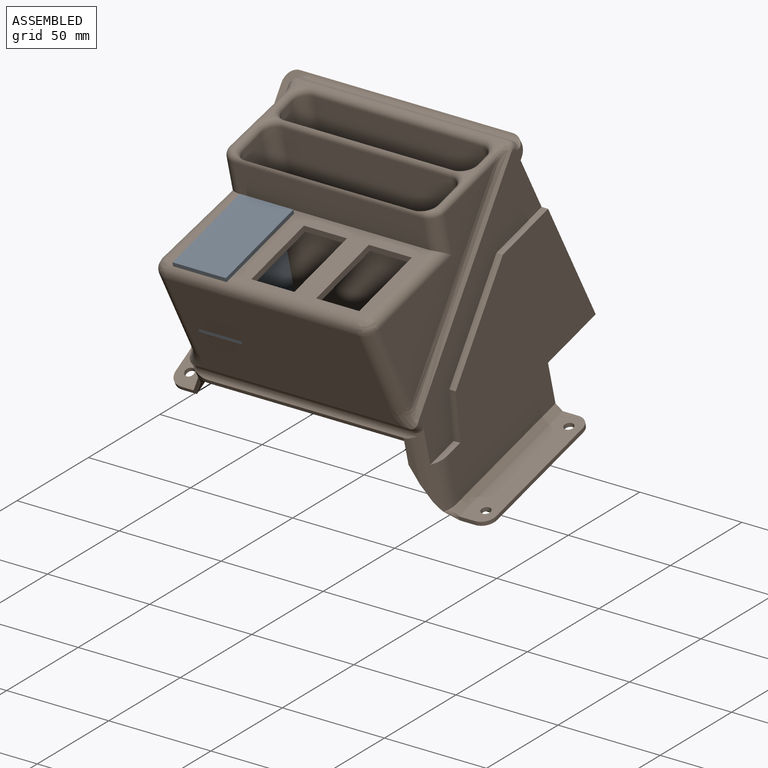
[diagram: assembled view]
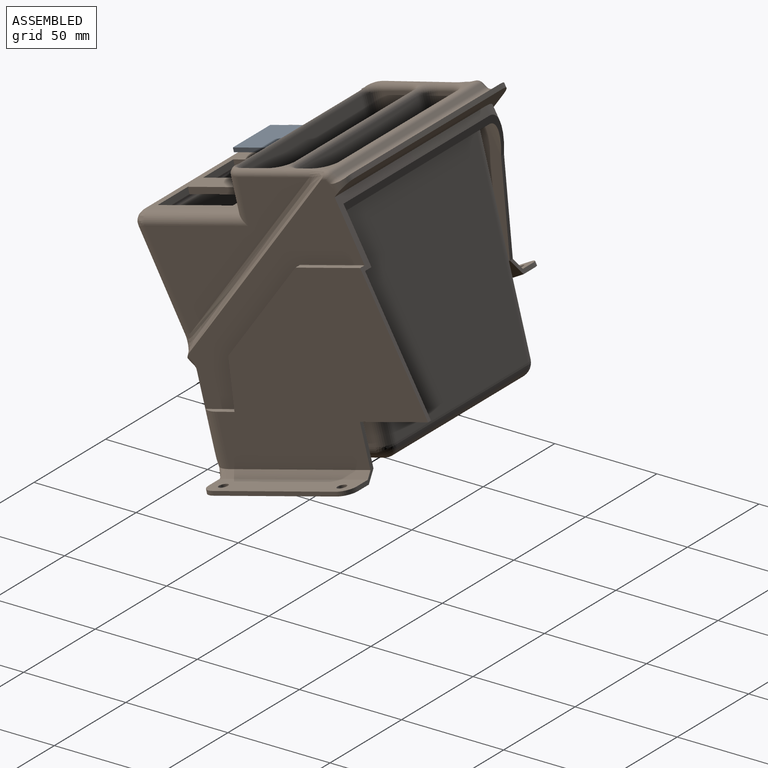
[diagram: assembled view, second angle]
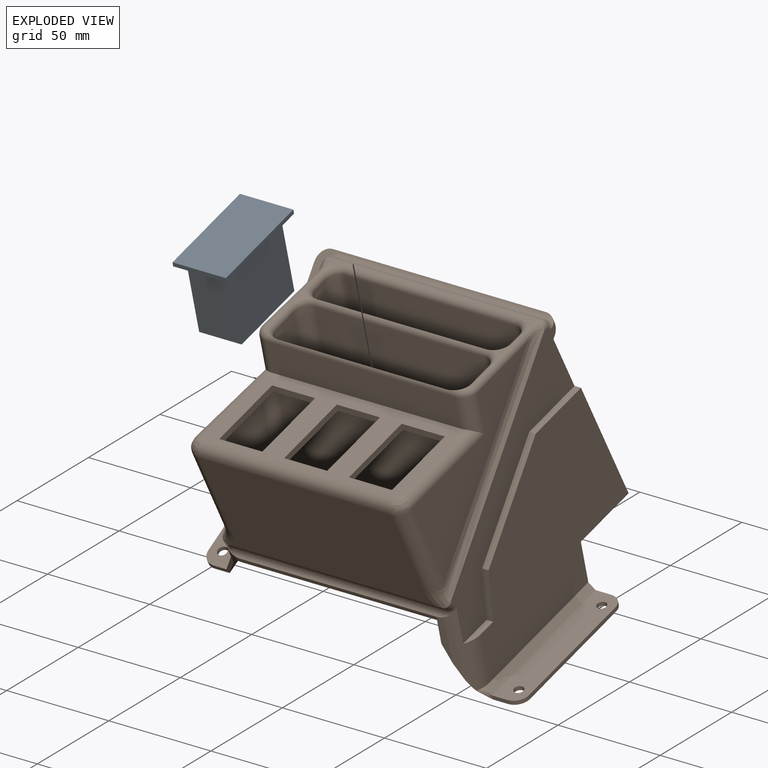
[diagram: exploded view]
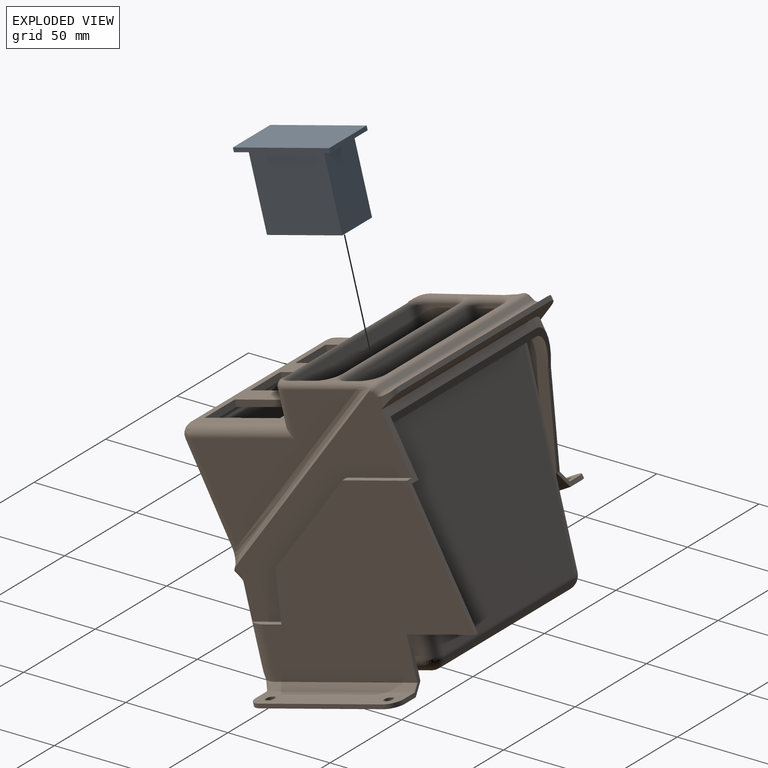
[diagram: exploded view, second angle]
ASSEMBLY  parts=2 mates=3
PART A: 11 faces, bbox 26.2x38.4x48.8 mm
  f0: plane 26.16x2.03mm, normal (0,0,1), area 53.2mm2, adj f1,f3,f4,f5
  f1: plane 48.77x2.03mm, normal (-1,0,0), area 99.1mm2, adj f0,f2,f4,f5
  f2: plane 26.16x2.03mm, normal (0,0,-1), area 53.2mm2, adj f1,f3,f4,f5
  f3: plane 48.77x2.03mm, normal (1,0,0), area 99.1mm2, adj f0,f2,f4,f5
  f4: plane 48.77x26.16mm, normal (0,-1,0), area 1275.9mm2, adj f0,f1,f2,f3
  f5: plane 48.77x26.16mm, normal (0,1,0), area 482.3mm2, adj f0,f1,f2,f3,f6,f7,f8,f9
  f6: plane 38.1x36.32mm, normal (-1,0,0), area 1383.9mm2, adj f5,f7,f9,f10
  f7: plane 36.32x20.83mm, normal (0,0,1), area 756.5mm2, adj f5,f6,f8,f10
  f8: plane 38.1x36.32mm, normal (1,0,0), area 1383.9mm2, adj f5,f7,f9,f10
  f9: plane 36.32x20.83mm, normal (0,0,-1), area 756.5mm2, adj f5,f6,f8,f10
  f10: plane 38.1x20.83mm, normal (0,1,0), area 793.5mm2, adj f6,f7,f8,f9
PART B: 202 faces, bbox 155.3x2770.8x1367.6 mm
  f0: plane 105.77x3.32mm, normal (0,0.44,-0.9), area 347.4mm2, adj f12,f14,f15,f16,f31,f63,f196
  f1: plane 6.26x3.11mm, normal (0,0.25,0.97), area 8.2mm2, adj f180,f181,f188
  f2: plane 102.95x5.12mm, normal (0,0.25,0.97), area 78.1mm2, adj f162,f164,f172,f173,f179,f185,f186,f189
  f3: plane 101.61x0.47mm, normal (0,-0.44,0.9), area 38mm2, adj f12,f13,f31,f148
  f4: plane 110.01x103.6mm, normal (0,0.44,-0.9), area 538mm2, adj f8,f46,f76,f77,f80,f81,f82,f106
  f5: plane 92.11x54.53mm, normal (1,0,0), area 2005.6mm2, adj f144,f156,f160,f166,f201
  f6: plane 92.77x15.36mm, normal (0,-0.97,0.25), area 1472.8mm2, adj f103,f144,f145,f177
  f7: plane 91.89x54.45mm, normal (-1,0.03,-0.01), area 1994.1mm2, adj f145,f157,f158,f188,f197
  f8: plane 106.92x7.98mm, normal (0,-0.9,-0.44), area 300.8mm2, adj f4,f46,f77,f78,f83,f123,f132
  f9: plane 103.51x30.29mm, normal (0,-1,0), area 660.7mm2, adj f20,f21,f22,f46,f49,f78
  f10: plane 102.94x1.96mm, normal (0,0.9,0.44), area 224.4mm2, adj f136,f137,f154,f172
  f11: plane 108.71x98.16mm, normal (0,1,0), area 671.5mm2, adj f20,f21,f22,f23,f37,f38,f39,f43
  f12: plane 96.01x2.26mm, normal (0,-1,0), area 217.4mm2, adj f0,f3,f14,f31
  f13: cylinder r=11.43mm len=42.79mm, axis (0,0.25,0.97), area 452.9mm2, adj f3,f14,f23,f40,f44,f60,f61,f62
  f14: plane 13.74x5.18mm, normal (-1,0,0), area 24.9mm2, adj f0,f12,f13,f16,f60
  f15: cylinder r=9.4mm len=40.36mm, axis (0,0.25,0.97), area 259.4mm2, adj f0,f16,f17,f46,f48,f60,f195
  f16: bspline ~16.43x4.52mm, area 31.3mm2, adj f0,f14,f15,f60
  f17: plane 17.08x4.48mm, normal (0,-0.25,-0.97), area 49.1mm2, adj f15,f46,f48,f50
  f18: plane 0.22x0.13mm, normal (0,0,-1), area 0mm2, adj f30,f52,f63
  f19: plane 41.6x18.38mm, normal (0,0.91,-0.4), area 92.4mm2, adj f22,f24,f25,f29
  f20: plane 28.02x2.03mm, normal (-1,0,0), area 53.1mm2, adj f9,f11,f21,f22
  f21: plane 31.42x8.21mm, normal (0,-0.25,-0.97), area 105.8mm2, adj f9,f11,f20,f46,f48,f51
  f22: plane 113.64x18.42mm, normal (0,0.85,-0.53), area 456.9mm2, adj f9,f11,f19,f20,f38,f49
  f23: plane 107.77x87.58mm, normal (1,0,0), area 6340.6mm2, adj f11,f13,f39,f40,f41,f42,f43,f55
  f24: plane 97.75x67.05mm, normal (-1,0,0), area 3038mm2, adj f19,f28,f31,f35,f37,f38,f73
  f25: plane 11.43x7.62mm, normal (0,1,0), area 27.2mm2, adj f19,f26,f32,f34,f35,f70
  f26: plane 79.03x18.48mm, normal (0.88,0,-0.48), area 689.5mm2, adj f25,f29,f30,f31,f32,f36,f45,f52
  f27: plane 104.27x2.26mm, normal (0,1,0), area 236.1mm2, adj f28,f37,f72,f73
  f28: plane 113.99x112.43mm, normal (0,-0.44,0.9), area 451.1mm2, adj f24,f27,f31,f72,f73,f151,f152,f153
  f29: plane 85.05x58.54mm, normal (1,0,0), area 2816.6mm2, adj f19,f26,f45,f47,f49
  f30: cylinder r=11.43mm len=0.4mm, axis (0,0,1), area 0.1mm2, adj f18,f26,f52
  f31: cylinder r=12.7mm len=18.95mm, axis (0,0,-1), area 193.7mm2, adj f0,f3,f12,f24,f26,f28,f35,f36
  f32: plane 74.93x13.56mm, normal (0,0,-1), area 966.9mm2, adj f25,f26,f33,f36,f66,f67,f70,f71
  f33: plane 62.23x2.03mm, normal (-1,0,0), area 126.5mm2, adj f32,f34,f70,f71
  f34: plane 74.93x12.66mm, normal (0,0,1), area 898.9mm2, adj f25,f33,f35,f36,f66,f67,f70,f71
  f35: plane 74.93x11.1mm, normal (-0.88,0,0.48), area 494.9mm2, adj f24,f25,f31,f34,f36
  f36: plane 13.13x12.45mm, normal (0,-1,0), area 34.6mm2, adj f26,f31,f32,f34,f35,f71
  f37: plane 119.33x21.42mm, normal (0,0.44,-0.9), area 1005.3mm2, adj f11,f24,f27,f38,f44,f72,f73
  f38: cylinder r=11.43mm len=22.56mm, axis (0,0,-1), area 144.1mm2, adj f11,f22,f24,f37
  f39: plane 33.37x8.72mm, normal (0,-0.25,-0.97), area 70.1mm2, adj f11,f23,f48,f55
  f40: plane 16.4x4.28mm, normal (0,0.25,0.97), area 46mm2, adj f13,f23,f41,f44
  f41: plane 22.4x9.04mm, normal (0,-0.93,0.37), area 76.7mm2, adj f23,f40,f42,f44
  f42: plane 52.14x25.66mm, normal (0,-0.44,0.9), area 184.5mm2, adj f23,f41,f43,f44
  f43: plane 31.64x8.26mm, normal (0,0.25,0.97), area 103.8mm2, adj f11,f23,f42,f44
  f44: plane 111.2x78.97mm, normal (1,0,0), area 2347.6mm2, adj f11,f13,f37,f40,f41,f42,f43,f72
  f45: cylinder r=10.67mm len=16.68mm, axis (0,0,-1), area 123mm2, adj f26,f29,f47,f52
  f46: plane 108.19x79.86mm, normal (-1,0,0), area 2304.9mm2, adj f4,f8,f9,f15,f17,f21,f50,f51
  f47: plane 104.08x51.56mm, normal (0,0.44,-0.9), area 701mm2, adj f29,f45,f49,f52,f77
  f48: plane 107.77x85.42mm, normal (-1,0,0), area 6067.3mm2, adj f11,f15,f17,f21,f39,f50,f51,f55
  f49: cylinder r=9.4mm len=21.47mm, axis (0,0,-1), area 150.5mm2, adj f9,f22,f29,f47,f77,f78
  f50: plane 25.11x10.13mm, normal (0,0.93,-0.37), area 86mm2, adj f17,f46,f48,f51
  f51: plane 50.77x24.98mm, normal (0,0.44,-0.9), area 179.6mm2, adj f21,f46,f48,f50
  f52: plane 2.95x0.47mm, normal (0,1,0), area 1.1mm2, adj f18,f26,f30,f45,f47,f63,f77,f196
  f53: plane 7.62x1.97mm, normal (0,-0.97,0.25), area 15.5mm2, adj f54,f56,f62,f69
  f54: plane 72.5x18.94mm, normal (0,-0.25,-0.97), area 997.4mm2, adj f53,f55,f57,f58,f64,f65,f68,f69
  f55: plane 24.85x12.7mm, normal (0,0.97,-0.25), area 65.6mm2, adj f23,f39,f48,f54,f56,f58,f59,f68
  f56: plane 72.5x18.94mm, normal (0,0.25,0.97), area 997.4mm2, adj f53,f55,f57,f59,f61,f64,f65,f68
  f57: plane 60.72x17.69mm, normal (1,0,0), area 126.5mm2, adj f54,f56,f68,f69
  f58: plane 75.49x24.63mm, normal (-0.71,-0.18,-0.68), area 549.4mm2, adj f48,f54,f55,f60,f62
  f59: plane 69.97x21.02mm, normal (0.71,0.18,0.68), area 308.3mm2, adj f23,f55,f56,f61
  f60: plane 26.67x9.45mm, normal (-0.93,-0.09,-0.35), area 67.8mm2, adj f13,f14,f15,f16,f58
  f61: bspline ~4.07x3.81mm, area 15.2mm2, adj f13,f56,f59,f62
  f62: bspline ~5.7x5.08mm, area 12.6mm2, adj f13,f53,f58,f61
  f63: plane 2.52x2.09mm, normal (1,0,0), area 3.6mm2, adj f0,f18,f26,f31,f52,f196
  f64: cylinder r=2.26mm len=4.89mm, axis (0,0.25,0.97), area 28.9mm2, adj f54,f56
  f65: cylinder r=2.26mm len=4.89mm, axis (0,0.25,0.97), area 28.9mm2, adj f54,f56
  f66: cylinder r=2.26mm len=4.52mm, axis (0,0,1), area 28.9mm2, adj f32,f34
  f67: cylinder r=2.26mm len=4.52mm, axis (0,0,1), area 28.9mm2, adj f32,f34
  f68: cylinder r=6.35mm len=6.66mm, axis (0,0.25,0.97), area 20.3mm2, adj f54,f55,f56,f57
  f69: cylinder r=6.35mm len=6.66mm, axis (0,-0.25,-0.97), area 20.3mm2, adj f53,f54,f56,f57
  f70: cylinder r=6.35mm len=6.35mm, axis (0,0,-1), area 20.3mm2, adj f25,f32,f33,f34
  f71: cylinder r=6.35mm len=6.35mm, axis (0,0,-1), area 20.3mm2, adj f32,f33,f34,f36
  f72: cylinder r=6.35mm len=7.02mm, axis (0,0,-1), area 29.9mm2, adj f27,f28,f37,f44,f137,f154,f155
  f73: cylinder r=6.35mm len=6.35mm, axis (0,0,1), area 22.6mm2, adj f24,f27,f28,f37
  f74: plane 105.72x3.79mm, normal (0,-0.9,-0.44), area 381.4mm2, adj f104,f138,f139,f147,f148,f149,f159,f161
  f75: plane 106.6x54.39mm, normal (-1,0.02,0.01), area 422.7mm2, adj f136,f139,f152,f157,f159,f185
  f76: plane 107.66x3.45mm, normal (0,0.9,0.44), area 391.1mm2, adj f4,f46,f77,f195,f196
  f77: plane 104.4x57.1mm, normal (1,-0.02,-0.01), area 770.5mm2, adj f4,f8,f47,f49,f52,f76,f78,f196
  f78: plane 105.38x0.36mm, normal (0,-0.44,0.9), area 15.9mm2, adj f8,f9,f46,f49,f77
  f79: plane 92.79x38.4mm, normal (0,-0.25,-0.97), area 3659.9mm2, adj f124,f125,f129,f130
  f80: plane 105.31x65.9mm, normal (-1,0.03,-0.01), area 3640.3mm2, adj f4,f121,f123,f124
  f81: plane 92.77x88.25mm, normal (0,-0.97,0.25), area 8380.3mm2, adj f4,f121,f125,f126,f135,f140,f142
  f82: plane 105.15x65.87mm, normal (1,0,0), area 3632.6mm2, adj f4,f126,f130,f132
  f83: plane 104.69x91.66mm, normal (0,0.97,-0.25), area 9918.3mm2, adj f8,f123,f129,f132
  f84: plane 4.45x2.41mm, normal (0,0.25,0.97), area 4.9mm2, adj f166,f168,f169
  f85: plane 95.25x24.58mm, normal (0,0.25,0.97), area 2384.7mm2, adj f86,f87,f88,f89,f90,f91,f92,f93
  f86: cylinder r=6.35mm len=116.28mm, axis (0,-0.25,-0.97), area 1182.2mm2, adj f85,f87,f93,f169
  f87: plane 114.67x82.55mm, normal (0,-0.97,0.25), area 9783.8mm2, adj f85,f86,f88,f175
  f88: cylinder r=6.35mm len=116.28mm, axis (0,-0.25,-0.97), area 1182.2mm2, adj f85,f87,f89,f181
  f89: plane 117.88x42.24mm, normal (1,0,0), area 1505.2mm2, adj f85,f88,f90,f182
  f90: cylinder r=6.35mm len=116.28mm, axis (0,-0.25,-0.97), area 1182.2mm2, adj f85,f89,f91,f183
  f91: plane 114.67x82.55mm, normal (0,0.97,-0.25), area 9783.8mm2, adj f85,f90,f92,f176
  f92: cylinder r=6.35mm len=116.28mm, axis (0,-0.25,-0.97), area 1182.2mm2, adj f85,f91,f93,f170
  f93: plane 117.88x42.24mm, normal (-1,0,0), area 1505.2mm2, adj f85,f86,f92,f165
  f94: plane 95.25x18.43mm, normal (0,0.25,0.97), area 1779.9mm2, adj f95,f96,f97,f98,f99,f100,f101,f102
  f95: cylinder r=6.35mm len=116.28mm, axis (0,-0.25,-0.97), area 1182.2mm2, adj f94,f96,f102,f168
  f96: plane 116.28x36.1mm, normal (-1,0,0), area 752.6mm2, adj f94,f95,f97,f167
  f97: cylinder r=6.35mm len=116.28mm, axis (0,-0.25,-0.97), area 1182.2mm2, adj f94,f96,f98,f173
  f98: plane 114.67x82.55mm, normal (0,-0.97,0.25), area 9783.8mm2, adj f94,f97,f99,f179
  f99: cylinder r=6.35mm len=116.28mm, axis (0,-0.25,-0.97), area 1182.2mm2, adj f94,f98,f100,f186
  f100: plane 116.28x36.1mm, normal (1,0,0), area 752.6mm2, adj f94,f99,f101,f187
  f101: cylinder r=6.35mm len=116.28mm, axis (0,-0.25,-0.97), area 1182.2mm2, adj f94,f100,f102,f180
  f102: plane 114.67x82.55mm, normal (0,0.97,-0.25), area 9783.8mm2, adj f94,f95,f101,f174
  f103: plane 96.8x46.11mm, normal (0,0.25,0.97), area 2155.7mm2, adj f6,f109,f110,f111,f112,f113,f114,f115
  f104: plane 99.53x56.78mm, normal (0,-1,0.01), area 5356.7mm2, adj f74,f158,f159,f160,f161,f199
  f105: plane 89.1x39.46mm, normal (0,-0.25,-0.97), area 1224.4mm2, adj f109,f110,f111,f112,f113,f114,f115,f116
  f106: plane 92.91x55.82mm, normal (0,1,-0.01), area 5185.5mm2, adj f4,f190,f191,f192,f193,f194
  f107: plane 52.25x39.7mm, normal (1,0,0), area 1393.5mm2, adj f4,f134,f142,f194
  f108: plane 52.25x39.7mm, normal (-1,0,0), area 1393.5mm2, adj f4,f133,f140,f190
  f109: plane 37.67x12.7mm, normal (1,0,0), area 121mm2, adj f103,f105,f110,f111
  f110: plane 21.08x3.07mm, normal (0,0.97,-0.25), area 66.9mm2, adj f103,f105,f109,f112
  f111: plane 21.08x3.07mm, normal (0,-0.97,0.25), area 66.9mm2, adj f103,f105,f109,f112
  f112: plane 37.67x12.7mm, normal (-1,0,0), area 121mm2, adj f103,f105,f110,f111
  f113: plane 37.67x12.7mm, normal (1,0,0), area 121mm2, adj f103,f105,f114,f115
  f114: plane 21.08x3.07mm, normal (0,0.97,-0.25), area 66.9mm2, adj f103,f105,f113,f116
  f115: plane 21.08x3.07mm, normal (0,-0.97,0.25), area 66.9mm2, adj f103,f105,f113,f116
  f116: plane 37.67x12.7mm, normal (-1,0,0), area 121mm2, adj f103,f105,f114,f115
  f117: plane 37.67x12.7mm, normal (1,0,0), area 121mm2, adj f103,f105,f118,f119
  f118: plane 21.08x3.07mm, normal (0,0.97,-0.25), area 66.9mm2, adj f103,f105,f117,f120
  f119: plane 21.08x3.07mm, normal (0,-0.97,0.25), area 66.9mm2, adj f103,f105,f117,f120
  f120: plane 37.67x12.7mm, normal (-1,0,0), area 121mm2, adj f103,f105,f118,f119
  f121: cylinder r=6.35mm len=73.77mm, axis (0,-0.25,-0.97), area 728.2mm2, adj f4,f80,f81,f122
  f122: sphere r=6.35mm, area 44.8mm2, adj f121,f124,f125
  f123: cylinder r=6.35mm len=109.56mm, axis (0,-0.25,-0.97), area 1077.7mm2, adj f4,f8,f80,f83,f127
  f124: cylinder r=6.35mm len=40.18mm, axis (0.03,0.97,-0.25), area 396mm2, adj f79,f80,f122,f127
  f125: cylinder r=6.35mm len=92.77mm, axis (-1,0,0), area 925.4mm2, adj f79,f81,f122,f128
  f126: cylinder r=6.35mm len=73.57mm, axis (0,-0.25,-0.97), area 714.3mm2, adj f4,f81,f82,f128
  f127: sphere r=6.35mm, area 64.4mm2, adj f123,f124,f129
  f128: sphere r=6.35mm, area 44mm2, adj f125,f126,f130
  f129: cylinder r=6.35mm len=91.66mm, axis (1,0,0), area 914.3mm2, adj f79,f83,f127,f131
  f130: cylinder r=6.35mm len=40mm, axis (0,-0.97,0.25), area 395.9mm2, adj f79,f82,f128,f131
  f131: sphere r=6.35mm, area 62.7mm2, adj f129,f130,f132
  f132: cylinder r=6.35mm len=109.6mm, axis (0,-0.25,-0.97), area 1097.4mm2, adj f4,f8,f82,f83,f131
  f133: cylinder r=5.08mm len=40.75mm, axis (0,0.97,-0.25), area 323.6mm2, adj f105,f108,f141,f191
  f134: cylinder r=5.08mm len=40.75mm, axis (0,-0.97,0.25), area 323.6mm2, adj f105,f107,f143,f193
  f135: cylinder r=5.08mm len=89.1mm, axis (1,0,0), area 711mm2, adj f81,f105,f141,f143
  f136: cylinder r=3.17mm len=3.75mm, axis (0,0.44,-0.9), area 10.7mm2, adj f10,f75,f153,f178
  f137: cylinder r=3.17mm len=5.58mm, axis (0,-0.44,0.9), area 11.5mm2, adj f10,f44,f72,f155,f163
  f138: cylinder r=3.17mm len=4.99mm, axis (0,0.44,-0.9), area 17.9mm2, adj f44,f74,f146,f161
  f139: cylinder r=3.17mm len=4.75mm, axis (0,-0.44,0.9), area 16.1mm2, adj f74,f75,f150,f151,f159
  f140: cylinder r=5.08mm len=27.13mm, axis (0,0.25,0.97), area 195.6mm2, adj f4,f81,f108,f141
  f141: sphere r=5.08mm, area 28.2mm2, adj f133,f135,f140
  f142: cylinder r=5.08mm len=27.13mm, axis (0,0.25,0.97), area 195.6mm2, adj f4,f81,f107,f143
  f143: sphere r=5.08mm, area 28.2mm2, adj f134,f135,f142
  f144: cylinder r=6.35mm len=21.88mm, axis (0,-0.25,-0.97), area 174.7mm2, adj f5,f6,f103,f171,f201
  f145: cylinder r=6.35mm len=21.93mm, axis (0,-0.25,-0.97), area 177.5mm2, adj f6,f7,f103,f184,f197
  f146: bspline ~5.54x5.28mm, area 13.2mm2, adj f13,f44,f138,f147
  f147: bspline ~4.36x4.27mm, area 10.2mm2, adj f13,f74,f146,f148
  f148: cylinder r=3.17mm len=101.49mm, axis (-1,0,0), area 506.2mm2, adj f3,f74,f147,f149
  f149: bspline ~4.25x1.76mm, area 5.9mm2, adj f31,f74,f148,f150
  f150: bspline ~7.86x6mm, area 25.1mm2, adj f31,f139,f149,f151
  f151: torus R=6.35mm, axis (0,-0.44,0.9), area 1.8mm2, adj f28,f139,f150,f152
  f152: cylinder r=3.17mm len=106.18mm, axis (-0.02,-0.9,-0.44), area 582.2mm2, adj f28,f75,f151,f153
  f153: torus R=6.35mm, axis (0,-0.44,0.9), area 33.5mm2, adj f28,f136,f152,f154
  f154: cylinder r=3.17mm len=102.94mm, axis (-1,0,0), area 513.1mm2, adj f10,f28,f72,f153,f155
  f155: torus R=6.35mm, axis (0,-0.44,0.9), area 12.5mm2, adj f72,f137,f154
  f156: bspline ~2768.47x1365.24mm, area 650mm2, adj f5,f44,f161,f162,f164
  f157: bspline ~1031.75x511.51mm, area 637.8mm2, adj f7,f75,f159,f185,f189
  f158: cylinder r=6.35mm len=47.87mm, axis (0.01,-0.01,-1), area 483mm2, adj f7,f104,f159,f198
  f159: bspline ~13.13x9.67mm, area 84.9mm2, adj f74,f75,f104,f139,f157,f158
  f160: cylinder r=6.35mm len=47.91mm, axis (0,0.01,1), area 475.4mm2, adj f5,f104,f161,f200
  f161: bspline ~14.5x9.85mm, area 83.4mm2, adj f44,f74,f104,f138,f156,f160
  f162: cylinder r=3.17mm len=3.63mm, axis (0,0.97,-0.25), area 4.1mm2, adj f2,f44,f156,f163,f164
  f163: sphere r=3.17mm, area 10.4mm2, adj f137,f162,f172
  f164: bspline ~13.76x5.46mm, area 37.9mm2, adj f2,f156,f162,f166,f173
  f165: cylinder r=3.17mm len=13.06mm, axis (0,0.97,-0.25), area 51.4mm2, adj f93,f166,f169,f170
  f166: cylinder r=3.17mm len=36.14mm, axis (0,-0.97,0.25), area 155.8mm2, adj f5,f84,f164,f165,f167,f168,f169,f170
  f167: cylinder r=3.17mm len=6.91mm, axis (0,0.97,-0.25), area 25.7mm2, adj f96,f166,f168,f173
  f168: torus R=9.53mm, axis (0,0.25,0.97), area 51.7mm2, adj f84,f95,f166,f167,f169,f174
  f169: torus R=9.53mm, axis (0,0.25,0.97), area 51.7mm2, adj f84,f86,f165,f166,f168,f175
  f170: torus R=9.53mm, axis (0,0.25,0.97), area 38.4mm2, adj f92,f165,f166,f171,f176,f177
  f171: torus R=3.17mm, axis (0,0.25,0.97), area 34.6mm2, adj f144,f166,f170,f177
  f172: cylinder r=3.17mm len=102.94mm, axis (-1,0,0), area 280.4mm2, adj f2,f10,f163,f178
  f173: torus R=9.53mm, axis (0,0.25,0.97), area 55.7mm2, adj f2,f97,f164,f166,f167,f179
  f174: cylinder r=3.17mm len=82.55mm, axis (1,0,0), area 274.5mm2, adj f102,f168,f175,f180
  f175: cylinder r=3.17mm len=82.55mm, axis (-1,0,0), area 274.5mm2, adj f87,f169,f174,f181
  f176: cylinder r=3.17mm len=82.55mm, axis (1,0,0), area 189.4mm2, adj f91,f170,f177,f183
  f177: cylinder r=3.17mm len=92.77mm, axis (-1,0,0), area 219.1mm2, adj f6,f170,f171,f176,f183,f184
  f178: sphere r=3.17mm, area 10.4mm2, adj f136,f172,f185
  f179: cylinder r=3.17mm len=82.55mm, axis (-1,0,0), area 411.7mm2, adj f2,f98,f173,f186
  f180: torus R=9.53mm, axis (0,0.25,0.97), area 52.6mm2, adj f1,f101,f174,f181,f187,f188
  f181: torus R=9.53mm, axis (0,0.25,0.97), area 52.8mm2, adj f1,f88,f175,f180,f182,f188
  f182: cylinder r=3.17mm len=13.09mm, axis (0,-0.97,0.25), area 58mm2, adj f89,f181,f183,f188
  f183: torus R=9.53mm, axis (0,0.25,0.97), area 42.4mm2, adj f90,f176,f177,f182,f184,f188
  f184: torus R=3.17mm, axis (0,0.25,0.97), area 38.8mm2, adj f145,f177,f183,f188
  f185: cylinder r=3.17mm len=3.6mm, axis (0.02,0.97,-0.25), area 4.2mm2, adj f2,f75,f157,f178,f189
  f186: torus R=9.53mm, axis (0,0.25,0.97), area 56.1mm2, adj f2,f99,f179,f187,f189
  f187: cylinder r=3.17mm len=6.92mm, axis (0,-0.97,0.25), area 26.7mm2, adj f100,f180,f186,f188,f189
  f188: cylinder r=3.17mm len=35.81mm, axis (0.03,0.97,-0.25), area 166.8mm2, adj f1,f7,f180,f181,f182,f183,f184,f187
  f189: bspline ~13.97x5.31mm, area 37.4mm2, adj f2,f157,f185,f186,f187,f188
  f190: cylinder r=3.17mm len=53.9mm, axis (0,0.01,1), area 264.6mm2, adj f4,f106,f108,f191
  f191: bspline ~5.13x5.08mm, area 34.9mm2, adj f106,f133,f190,f192
  f192: cylinder r=3.17mm len=89.1mm, axis (1,0,0), area 512.9mm2, adj f105,f106,f191,f193
  f193: bspline ~5.13x5.08mm, area 34.9mm2, adj f106,f134,f192,f194
  f194: cylinder r=3.17mm len=53.9mm, axis (0,-0.01,-1), area 264.6mm2, adj f4,f106,f107,f193
  f195: bspline ~4.82x4.44mm, area 8.2mm2, adj f15,f46,f76,f196
  f196: cylinder r=3.17mm len=105.94mm, axis (1,0,0), area 528mm2, adj f0,f52,f63,f76,f77,f195
  f197: cylinder r=5.08mm len=51.98mm, axis (-0.03,-0.97,0.25), area 394.5mm2, adj f7,f103,f145,f198
  f198: bspline ~8.82x7.68mm, area 65.7mm2, adj f103,f158,f197,f199
  f199: cylinder r=5.08mm len=94.24mm, axis (1,0,0), area 868mm2, adj f103,f104,f198,f200
  f200: bspline ~7.89x6.9mm, area 64.5mm2, adj f103,f160,f199,f201
  f201: cylinder r=5.08mm len=52.11mm, axis (0,0.97,-0.25), area 394.3mm2, adj f5,f103,f144,f200
PLACE A rot(axis=(-1,0,0),75.4deg) t=(26.63,-0.67,105.1)mm
PLACE B rot(axis=(1,0,0),29.3deg) t=(54.02,7.64,33.52)mm
MATE parallel A.f5 <-> B.f103  axis (0,0.25,-0.97) through (26.63,-0.67,105.1)mm
MATE planar A.f5 <-> B.f103  axis (0,0.25,-0.97) through (26.63,-0.67,105.1)mm
MATE planar A.f6 <-> B.f117  axis (-1,0,0) through (16.22,3.92,87.53)mm
